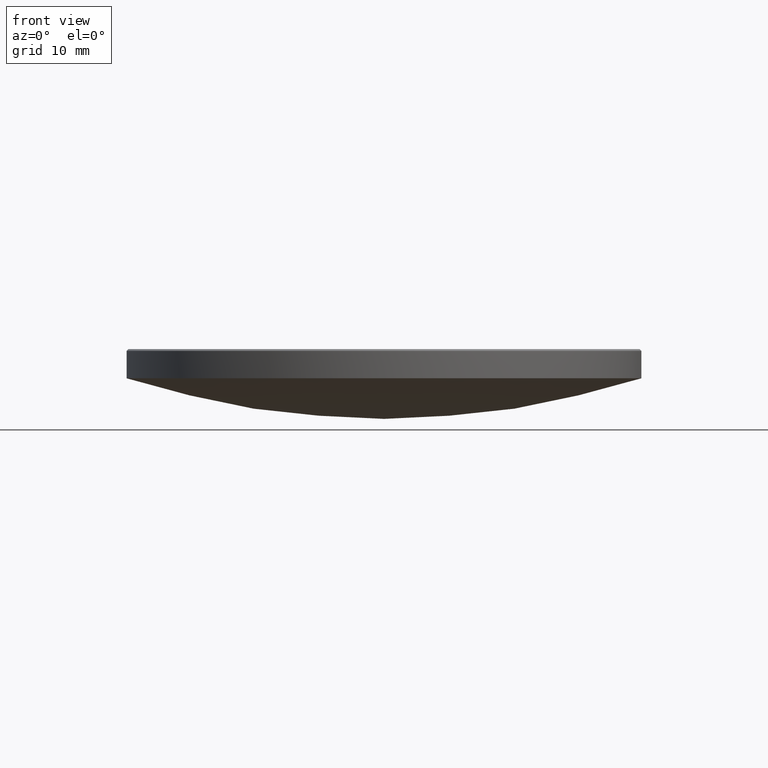
[diagram: clean part render]
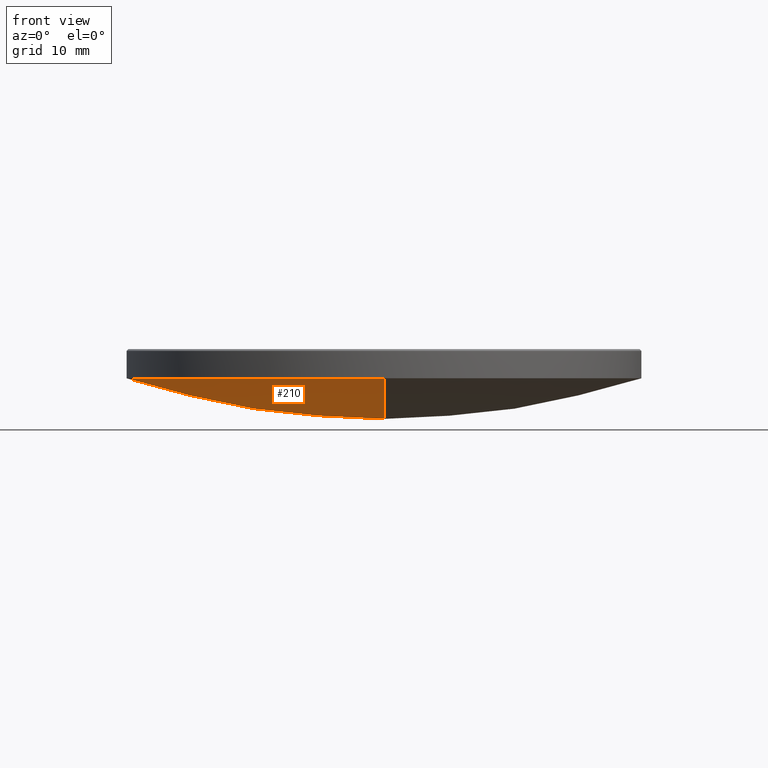
[diagram: same view with one face highlighted and labeled with its STEP entity id]
A machine part, front view. The second image highlights one B-rep face of the part: STEP entity #210.
In plain terms, the highlighted spherical surface has radius 82.54 mm.
Its self-contained STEP definition (entity closure, byte-faithful):
#1 = DIRECTION ( 'NONE',  ( 1.000000000000000000, 0.000000000000000000, 0.000000000000000000 ) ) ;
#8 = AXIS2_PLACEMENT_3D ( 'NONE', #143, #102, #11 ) ;
#11 = DIRECTION ( 'NONE',  ( -1.224646799147352961E-16, -1.000000000000000000, 0.000000000000000000 ) ) ;
#22 = AXIS2_PLACEMENT_3D ( 'NONE', #52, #53, #162 ) ;
#23 = VERTEX_POINT ( 'NONE', #116 ) ;
#33 = CARTESIAN_POINT ( 'NONE',  ( 0.000000000000000000, 25.39999999999999147, 12.99999999999999822 ) ) ;
#39 = EDGE_CURVE ( 'NONE', #176, #23, #281, .T. ) ;
#52 = CARTESIAN_POINT ( 'NONE',  ( 0.000000000000000000, 0.000000000000000000, 91.53465222435252713 ) ) ;
#53 = DIRECTION ( 'NONE',  ( -1.000000000000000000, 0.000000000000000000, 0.000000000000000000 ) ) ;
#72 = SPHERICAL_SURFACE ( 'NONE', #22, 82.54000000000000625 ) ;
#75 = CARTESIAN_POINT ( 'NONE',  ( 0.000000000000000000, 5.054117340081126317E-15, 8.994652224352527980 ) ) ;
#78 = AXIS2_PLACEMENT_3D ( 'NONE', #273, #190, #167 ) ;
#80 = VERTEX_POINT ( 'NONE', #133 ) ;
#102 = DIRECTION ( 'NONE',  ( -1.000000000000000000, 1.224646799147353207E-16, 0.000000000000000000 ) ) ;
#109 = CIRCLE ( 'NONE', #8, 82.54000000000000625 ) ;
#116 = CARTESIAN_POINT ( 'NONE',  ( -25.39999999999999503, 0.000000000000000000, 13.00000000000000000 ) ) ;
#122 = EDGE_CURVE ( 'NONE', #23, #80, #166, .T. ) ;
#133 = CARTESIAN_POINT ( 'NONE',  ( -3.110602869834276076E-15, -25.39999999999999147, 12.99999999999999822 ) ) ;
#143 = CARTESIAN_POINT ( 'NONE',  ( 0.000000000000000000, 0.000000000000000000, 91.53465222435252713 ) ) ;
#157 = AXIS2_PLACEMENT_3D ( 'NONE', #185, #179, #211 ) ;
#162 = DIRECTION ( 'NONE',  ( 0.000000000000000000, 1.000000000000000000, 0.000000000000000000 ) ) ;
#166 = CIRCLE ( 'NONE', #184, 25.39999999999999503 ) ;
#167 = DIRECTION ( 'NONE',  ( 0.000000000000000000, 0.000000000000000000, -1.000000000000000000 ) ) ;
#171 = ORIENTED_EDGE ( 'NONE', *, *, #187, .T. ) ;
#172 = CIRCLE ( 'NONE', #78, 82.54000000000000625 ) ;
#176 = VERTEX_POINT ( 'NONE', #33 ) ;
#179 = DIRECTION ( 'NONE',  ( -0.000000000000000000, -0.000000000000000000, 1.000000000000000000 ) ) ;
#184 = AXIS2_PLACEMENT_3D ( 'NONE', #206, #248, #1 ) ;
#185 = CARTESIAN_POINT ( 'NONE',  ( 0.000000000000000000, 0.000000000000000000, 13.00000000000000000 ) ) ;
#187 = EDGE_CURVE ( 'NONE', #231, #80, #109, .T. ) ;
#190 = DIRECTION ( 'NONE',  ( 1.000000000000000000, -0.000000000000000000, 0.000000000000000000 ) ) ;
#199 = ORIENTED_EDGE ( 'NONE', *, *, #233, .F. ) ;
#204 = ORIENTED_EDGE ( 'NONE', *, *, #122, .F. ) ;
#206 = CARTESIAN_POINT ( 'NONE',  ( 0.000000000000000000, 0.000000000000000000, 13.00000000000000000 ) ) ;
#210 = ADVANCED_FACE ( 'NONE', ( #238 ), #72, .T. ) ;
#211 = DIRECTION ( 'NONE',  ( 1.000000000000000000, 0.000000000000000000, 0.000000000000000000 ) ) ;
#231 = VERTEX_POINT ( 'NONE', #75 ) ;
#233 = EDGE_CURVE ( 'NONE', #231, #176, #172, .T. ) ;
#238 = FACE_OUTER_BOUND ( 'NONE', #279, .T. ) ;
#240 = ORIENTED_EDGE ( 'NONE', *, *, #39, .F. ) ;
#248 = DIRECTION ( 'NONE',  ( -0.000000000000000000, -0.000000000000000000, 1.000000000000000000 ) ) ;
#273 = CARTESIAN_POINT ( 'NONE',  ( 0.000000000000000000, 0.000000000000000000, 91.53465222435252713 ) ) ;
#279 = EDGE_LOOP ( 'NONE', ( #199, #171, #204, #240 ) ) ;
#281 = CIRCLE ( 'NONE', #157, 25.39999999999999503 ) ;